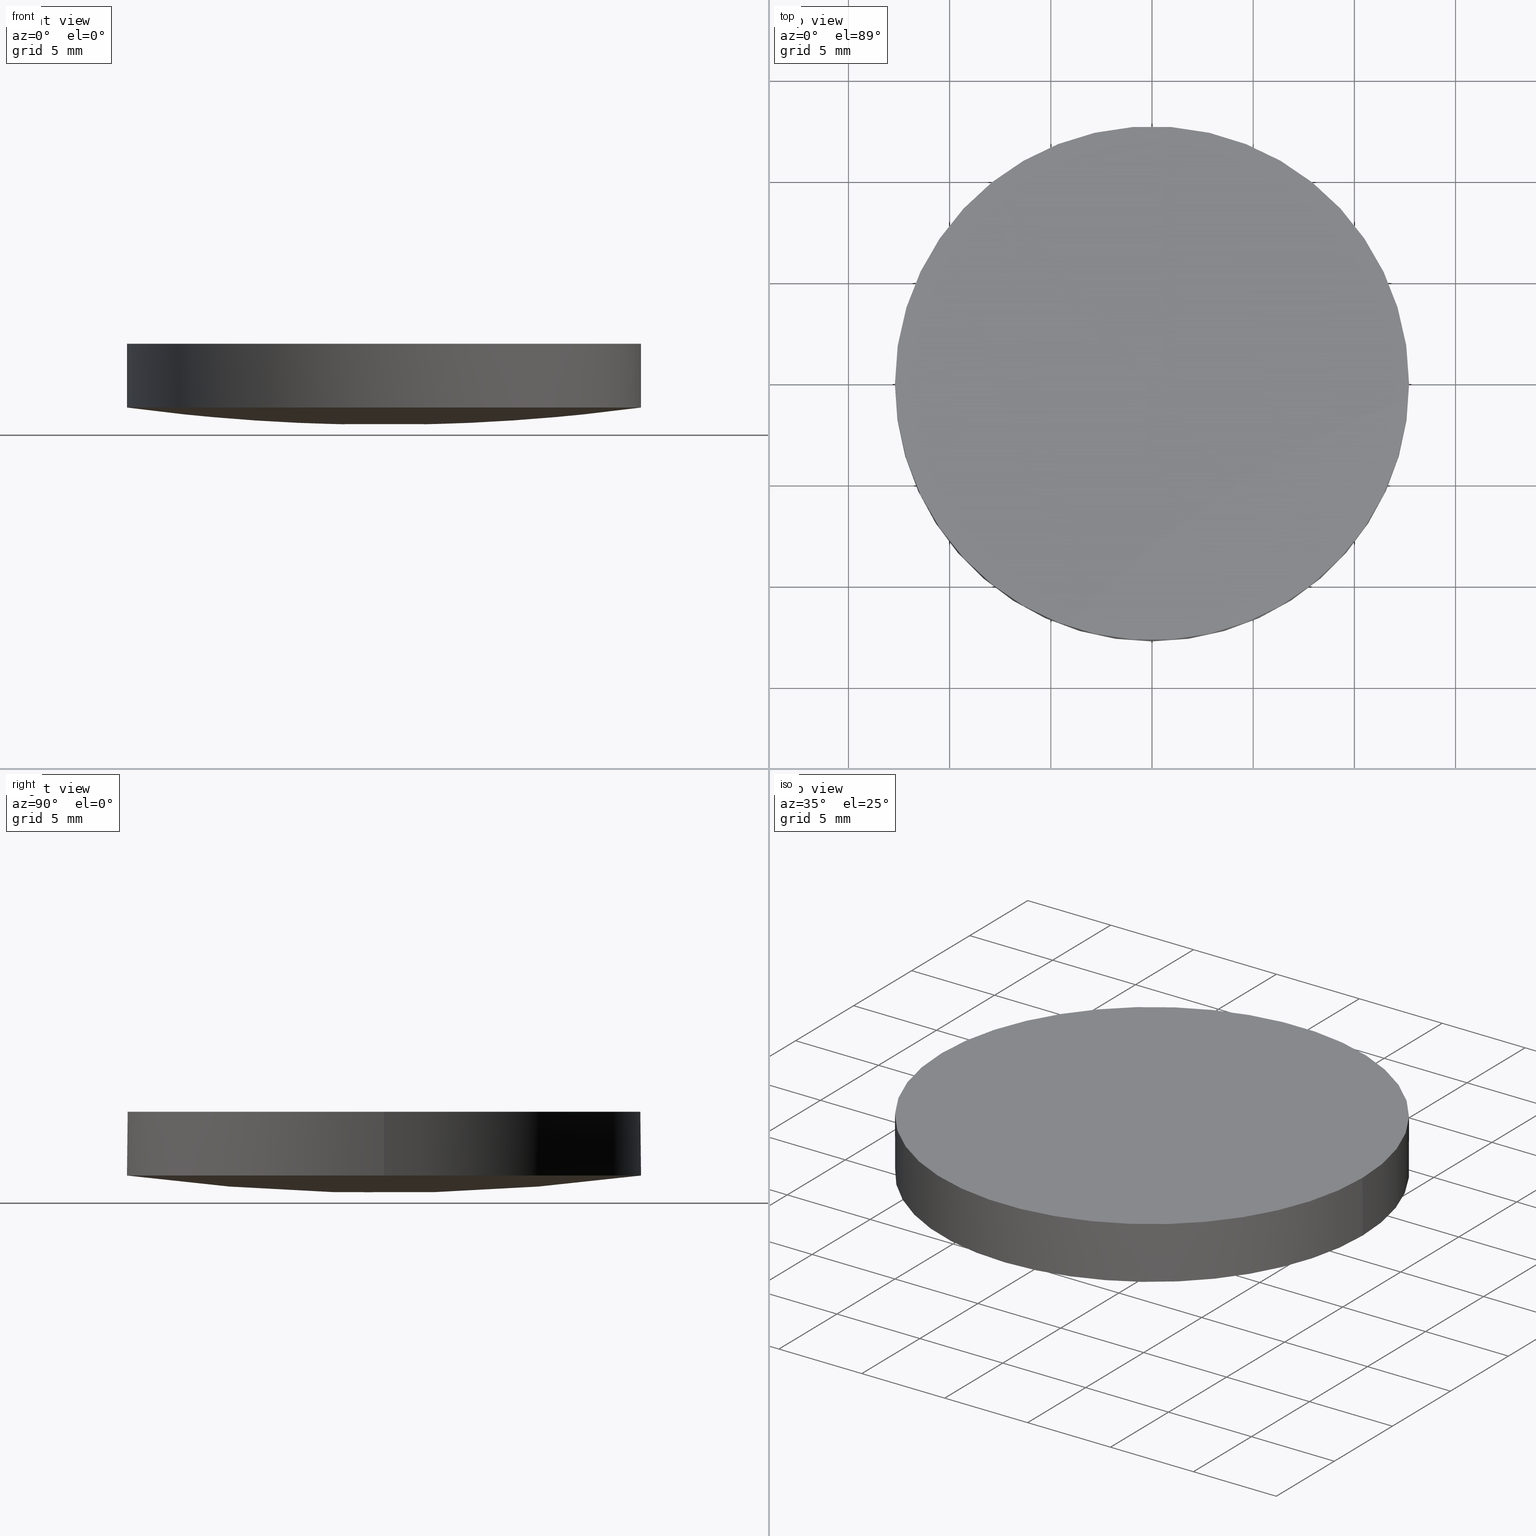
[diagram: canonical four-view strip — front | top / right | iso, engineering-drawing reading convention]
A machine part, canonical four-view strip (front | top / right | iso — engineering-drawing reading convention). The complete STEP part file that produces these views, byte-faithful:
ISO-10303-21;
HEADER;
FILE_DESCRIPTION (( 'STEP AP203' ),
    '1' );
FILE_NAME ('110-1219E UVFS pl-cx 25.4 F200.STEP',
    '2018-12-13T15:00:53',
    ( '' ),
    ( '' ),
    'SwSTEP 2.0',
    'SolidWorks 2017',
    '' );
FILE_SCHEMA (( 'CONFIG_CONTROL_DESIGN' ));
ENDSEC;

DATA;
#1 = CARTESIAN_POINT ( 'NONE',  ( -12.65882076481595500, 12.85147319862263000, 1.724503833646209700 ) ) ;
#2 = DIRECTION ( 'NONE',  ( 0.0000000000000000000, 0.0000000000000000000, 1.000000000000000000 ) ) ;
#3 = AXIS2_PLACEMENT_3D ( 'NONE', #22, #218, #43 ) ;
#4 = DATE_AND_TIME ( #67, #159 ) ;
#5 = DIRECTION ( 'NONE',  ( -0.0000000000000000000, -0.0000000000000000000, -1.000000000000000000 ) ) ;
#6 = LINE ( 'NONE', #81, #196 ) ;
#7 = CARTESIAN_POINT ( 'NONE',  ( 4.287812090952600700, 4.310121068828110900, -0.2922278843999989200 ) ) ;
#8 = EDGE_CURVE ( 'NONE', #181, #89, #136, .T. ) ;
#9 = ORIENTED_EDGE ( 'NONE', *, *, #113, .T. ) ;
#10 = AXIS2_PLACEMENT_3D ( 'NONE', #104, #140, #204 ) ;
#11 =( NAMED_UNIT ( * ) SI_UNIT ( $, .STERADIAN. ) SOLID_ANGLE_UNIT ( ) );
#12 = ADVANCED_FACE ( 'NONE', ( #226 ), #111, .T. ) ;
#13 = SECURITY_CLASSIFICATION_LEVEL ( 'unclassified' ) ;
#14 = PERSON_AND_ORGANIZATION_ROLE ( 'design_owner' ) ;
#15 = DATE_AND_TIME ( #16, #71 ) ;
#16 = CALENDAR_DATE ( 2018, 13, 12 ) ;
#17 = EDGE_LOOP ( 'NONE', ( #76, #148, #229, #192, #44 ) ) ;
#18 = PRODUCT_DEFINITION_FORMATION_WITH_SPECIFIED_SOURCE ( 'ANY', '', #129, .NOT_KNOWN. ) ;
#19 = PERSON_AND_ORGANIZATION ( #197, #118 ) ;
#20 = ORIENTED_EDGE ( 'NONE', *, *, #231, .T. ) ;
#21 = AXIS2_PLACEMENT_3D ( 'NONE', #199, #182, #203 ) ;
#22 = CARTESIAN_POINT ( 'NONE',  ( 4.996003610813200500E-016, 2.442490654175340100E-015, 0.8508239756196249700 ) ) ;
#23 = PRODUCT_DEFINITION ( 'UNKNOWN', '', #18, #65 ) ;
#24 = CARTESIAN_POINT ( 'NONE',  ( 8.461554903374523200, -12.85147319862264400, 1.156154320394219100 ) ) ;
#25 = APPROVAL_DATE_TIME ( #79, #78 ) ;
#26 = CARTESIAN_POINT ( 'NONE',  ( 12.65882076481594800, 12.85147319862263000, 1.724503833646207300 ) ) ;
#27 = DIRECTION ( 'NONE',  ( 1.000000000000000000, 0.0000000000000000000, -0.0000000000000000000 ) ) ;
#28 = MANIFOLD_SOLID_BREP ( 'Imported1', #94 ) ;
#29 =( GEOMETRIC_REPRESENTATION_CONTEXT ( 3 ) GLOBAL_UNCERTAINTY_ASSIGNED_CONTEXT ( ( #93 ) ) GLOBAL_UNIT_ASSIGNED_CONTEXT ( ( #51, #208, #11 ) ) REPRESENTATION_CONTEXT ( 'NONE', 'WORKASPACE' ) );
#30 = SHAPE_DEFINITION_REPRESENTATION ( #96, #83 ) ;
#31 = DATE_TIME_ROLE ( 'classification_date' ) ;
#32 = PERSON_AND_ORGANIZATION_ROLE ( 'creator' ) ;
#33 = CIRCLE ( 'NONE', #214, 12.69999999999999900 ) ;
#34 = MECHANICAL_CONTEXT ( 'NONE', #74, 'mechanical' ) ;
#35 = AXIS2_PLACEMENT_3D ( 'NONE', #166, #60, #80 ) ;
#36 = COORDINATED_UNIVERSAL_TIME_OFFSET ( 2, 0, .AHEAD. ) ;
#37 = CC_DESIGN_APPROVAL ( #92, ( #23 ) ) ;
#38 = CYLINDRICAL_SURFACE ( 'NONE', #10, 12.69999999999999900 ) ;
#39 = PERSON_AND_ORGANIZATION ( #197, #118 ) ;
#40 = EDGE_CURVE ( 'NONE', #232, #62, #219, .T. ) ;
#41 = EDGE_LOOP ( 'NONE', ( #202, #49 ) ) ;
#42 = CARTESIAN_POINT ( 'NONE',  ( 1.387778780781445700E-014, 12.85147319862263000, 0.8713348799916284000 ) ) ;
#43 = DIRECTION ( 'NONE',  ( 1.000000000000000000, 0.0000000000000000000, 0.0000000000000000000 ) ) ;
#44 = ORIENTED_EDGE ( 'NONE', *, *, #161, .T. ) ;
#45 = CARTESIAN_POINT ( 'NONE',  ( -12.81495327383873900, 4.310121068828110000, 0.5714639616968809600 ) ) ;
#46 = CARTESIAN_POINT ( 'NONE',  ( 0.0000000000000000000, 0.0000000000000000000, 0.0000000000000000000 ) ) ;
#47 = CARTESIAN_POINT ( 'NONE',  ( 12.81495327383873200, -4.310121068828122400, 0.5714639616968760800 ) ) ;
#48 = APPROVAL_DATE_TIME ( #4, #92 ) ;
#49 = ORIENTED_EDGE ( 'NONE', *, *, #40, .F. ) ;
#50 = PRODUCT_RELATED_PRODUCT_CATEGORY ( 'detail', '', ( #129 ) ) ;
#51 =( LENGTH_UNIT ( ) NAMED_UNIT ( * ) SI_UNIT ( .MILLI., .METRE. ) );
#52 = ORIENTED_EDGE ( 'NONE', *, *, #110, .T. ) ;
#53 = SECURITY_CLASSIFICATION ( '', '', #13 ) ;
#54 = APPROVAL_ROLE ( '' ) ;
#55 = CALENDAR_DATE ( 2018, 13, 12 ) ;
#56 = CIRCLE ( 'NONE', #99, 12.69999999999999900 ) ;
#57 = ADVANCED_FACE ( 'NONE', ( #223 ), #131, .T. ) ;
#58 = EDGE_LOOP ( 'NONE', ( #112, #91, #52 ) ) ;
#59 = CALENDAR_DATE ( 2018, 13, 12 ) ;
#60 = DIRECTION ( 'NONE',  ( 0.0000000000000000000, 0.0000000000000000000, 1.000000000000000000 ) ) ;
#61 = CARTESIAN_POINT ( 'NONE',  ( 1.387778780781445700E-014, -4.310121068828123300, -0.2922278843999969700 ) ) ;
#62 = VERTEX_POINT ( 'NONE', #95 ) ;
#63 = AXIS2_PLACEMENT_3D ( 'NONE', #84, #5, #101 ) ;
#64 = DIRECTION ( 'NONE',  ( -0.0000000000000000000, -0.0000000000000000000, -1.000000000000000000 ) ) ;
#65 = DESIGN_CONTEXT ( 'detailed design', #88, 'design' ) ;
#66 = CARTESIAN_POINT ( 'NONE',  ( 8.565918794912500200, -4.310121068828121500, -0.003895512210574697700 ) ) ;
#67 = CALENDAR_DATE ( 2018, 13, 12 ) ;
#68 = CARTESIAN_POINT ( 'NONE',  ( 4.996003610813200500E-016, 2.442490654175340100E-015, 4.000000000000000000 ) ) ;
#69 = CC_DESIGN_PERSON_AND_ORGANIZATION_ASSIGNMENT ( #180, #14, ( #129 ) ) ;
#70 = PLANE ( 'NONE',  #177 ) ;
#71 = LOCAL_TIME ( 17, 0, 53.00000000000000000, #36 ) ;
#72 = ORIENTED_EDGE ( 'NONE', *, *, #110, .F. ) ;
#73 = APPLICATION_PROTOCOL_DEFINITION ( 'international standard', 'config_control_design', 1994, #74 ) ;
#74 = APPLICATION_CONTEXT ( 'configuration controlled 3d designs of mechanical parts and assemblies' ) ;
#75 = PERSON_AND_ORGANIZATION ( #197, #118 ) ;
#76 = ORIENTED_EDGE ( 'NONE', *, *, #113, .F. ) ;
#77 = ADVANCED_FACE ( 'NONE', ( #178 ), #38, .T. ) ;
#78 = APPROVAL ( #225, 'UNSPECIFIED' ) ;
#79 = DATE_AND_TIME ( #59, #156 ) ;
#80 = DIRECTION ( 'NONE',  ( 1.000000000000000000, 0.0000000000000000000, 0.0000000000000000000 ) ) ;
#81 = CARTESIAN_POINT ( 'NONE',  ( -12.69999999999999900, 3.997792089092478900E-015, 0.8508239756196249700 ) ) ;
#82 = LOCAL_TIME ( 17, 0, 53.00000000000000000, #201 ) ;
#83 = ADVANCED_BREP_SHAPE_REPRESENTATION ( '110-1219E UVFS pl-cx 25.4 F200', ( #28, #200 ), #29 ) ;
#84 = CARTESIAN_POINT ( 'NONE',  ( 4.996003610813200500E-016, 2.442490654175340100E-015, 0.8508239756196249700 ) ) ;
#85 = CARTESIAN_POINT ( 'NONE',  ( -12.69999999999999900, 3.997792089092478900E-015, 4.000000000000000000 ) ) ;
#86 = CIRCLE ( 'NONE', #132, 12.69999999999999900 ) ;
#87 = CARTESIAN_POINT ( 'NONE',  ( 4.996003610813200500E-016, 2.442490654175340100E-015, 0.8508239756196249700 ) ) ;
#88 = APPLICATION_CONTEXT ( 'configuration controlled 3d designs of mechanical parts and assemblies' ) ;
#89 = VERTEX_POINT ( 'NONE', #102 ) ;
#90 = DATE_AND_TIME ( #107, #198 ) ;
#91 = ORIENTED_EDGE ( 'NONE', *, *, #146, .T. ) ;
#92 = APPROVAL ( #195, 'UNSPECIFIED' ) ;
#93 = UNCERTAINTY_MEASURE_WITH_UNIT (LENGTH_MEASURE( 1.000000000000000100E-005 ), #51, 'distance_accuracy_value', 'NONE');
#94 = CLOSED_SHELL ( 'NONE', ( #149, #12, #57, #77, #147 ) ) ;
#95 = CARTESIAN_POINT ( 'NONE',  ( 12.69999999999999900, 2.442490654175340100E-015, 4.000000000000000000 ) ) ;
#96 = PRODUCT_DEFINITION_SHAPE ( 'NONE', 'NONE',  #23 ) ;
#97 = CARTESIAN_POINT ( 'NONE',  ( -8.461554903374510800, 12.85147319862263200, 1.156154320394218200 ) ) ;
#98 = CARTESIAN_POINT ( 'NONE',  ( -8.461554903374510800, -12.85147319862264400, 1.156154320394218200 ) ) ;
#99 = AXIS2_PLACEMENT_3D ( 'NONE', #87, #64, #138 ) ;
#100 = DIRECTION ( 'NONE',  ( -0.0000000000000000000, -0.0000000000000000000, -1.000000000000000000 ) ) ;
#101 = DIRECTION ( 'NONE',  ( 1.000000000000000000, 0.0000000000000000000, 0.0000000000000000000 ) ) ;
#102 = CARTESIAN_POINT ( 'NONE',  ( 12.69999999999999900, 2.442490654175340100E-015, 0.8508239756196249700 ) ) ;
#103 = CIRCLE ( 'NONE', #179, 95.20999999999999400 ) ;
#104 = CARTESIAN_POINT ( 'NONE',  ( 4.996003610813200500E-016, 2.442490654175340100E-015, 0.8508239756196249700 ) ) ;
#105 = CC_DESIGN_PERSON_AND_ORGANIZATION_ASSIGNMENT ( #212, #210, ( #53 ) ) ;
#106 = CARTESIAN_POINT ( 'NONE',  ( 4.235571021814615200, 12.85147319862263200, 0.8713348799916240700 ) ) ;
#107 = CALENDAR_DATE ( 2018, 13, 12 ) ;
#108 = VERTEX_POINT ( 'NONE', #119 ) ;
#109 = APPROVAL_DATE_TIME ( #90, #165 ) ;
#110 = EDGE_CURVE ( 'NONE', #108, #181, #130, .T. ) ;
#111 = CYLINDRICAL_SURFACE ( 'NONE', #35, 12.69999999999999900 ) ;
#112 = ORIENTED_EDGE ( 'NONE', *, *, #231, .F. ) ;
#113 = EDGE_CURVE ( 'NONE', #108, #232, #6, .T. ) ;
#114 = APPROVAL_PERSON_ORGANIZATION ( #75, #92, #162 ) ;
#115 = ORIENTED_EDGE ( 'NONE', *, *, #169, .T. ) ;
#116 = CARTESIAN_POINT ( 'NONE',  ( -4.235571021814584100, 12.85147319862263200, 0.8713348799916281800 ) ) ;
#117 = CARTESIAN_POINT ( 'NONE',  ( -4.287812090952568800, 4.310121068828110000, -0.2922278843999948600 ) ) ;
#118 = ORGANIZATION ( 'UNSPECIFIED', 'UNSPECIFIED', '' ) ;
#119 = CARTESIAN_POINT ( 'NONE',  ( -12.69999999999999900, 3.997792089092478900E-015, 0.8508239756196249700 ) ) ;
#120 = CARTESIAN_POINT ( 'NONE',  ( 0.0000000000000000000, 26.11199999999999800, 4.000000000000000000 ) ) ;
#121 = CARTESIAN_POINT ( 'NONE',  ( 3.656417551492290700E-014, -4.310121068828122400, -0.2922278844000026400 ) ) ;
#122 = CARTESIAN_POINT ( 'NONE',  ( 8.461554903374523200, 12.85147319862263200, 1.156154320394219100 ) ) ;
#123 = APPROVAL_STATUS ( 'not_yet_approved' ) ;
#124 = DATE_TIME_ROLE ( 'creation_date' ) ;
#125 = DIRECTION ( 'NONE',  ( 0.0000000000000000000, -1.000000000000000000, 2.915195422290611700E-016 ) ) ;
#126 = PERSON_AND_ORGANIZATION ( #197, #118 ) ;
#127 = CC_DESIGN_DATE_AND_TIME_ASSIGNMENT ( #213, #31, ( #53 ) ) ;
#128 = ORIENTED_EDGE ( 'NONE', *, *, #8, .F. ) ;
#129 = PRODUCT ( '110-1219E UVFS pl-cx 25.4 F200', '110-1219E UVFS pl-cx 25.4 F200', '', ( #34 ) ) ;
#130 = CIRCLE ( 'NONE', #63, 12.69999999999999900 ) ;
#131 =( BOUNDED_SURFACE ( )  B_SPLINE_SURFACE ( 3, 3, ( 
 ( #168, #98, #215, #233 ),
 ( #135, #167, #234, #61 ),
 ( #45, #152, #117, #183 ),
 ( #1, #97, #116, #42 ) ),
 .UNSPECIFIED., .F., .F., .F. ) 
 B_SPLINE_SURFACE_WITH_KNOTS ( ( 4, 4 ),
 ( 4, 4 ),
 ( 0.0000000000000000000, 1.000000000000000000 ),
 ( 0.0000000000000000000, 1.000000000000000000 ),
 .UNSPECIFIED. ) 
 GEOMETRIC_REPRESENTATION_ITEM ( )  RATIONAL_B_SPLINE_SURFACE ( (
 ( 1.000000000000000000, 0.9984910117659392400, 0.9984910117659392400, 1.000000000000000000),
 ( 0.9938988560025793200, 0.9923990743230249900, 0.9923990743230249900, 0.9938988560025793200),
 ( 0.9938988560025793200, 0.9923990743230249900, 0.9923990743230249900, 0.9938988560025793200),
 ( 1.000000000000000000, 0.9984910117659392400, 0.9984910117659392400, 1.000000000000000000) ) ) 
 REPRESENTATION_ITEM ( '' )  SURFACE ( )  );
#132 = AXIS2_PLACEMENT_3D ( 'NONE', #187, #189, #205 ) ;
#133 = APPROVAL_PERSON_ORGANIZATION ( #126, #78, #144 ) ;
#134 = ORIENTED_EDGE ( 'NONE', *, *, #40, .T. ) ;
#135 = CARTESIAN_POINT ( 'NONE',  ( -12.81495327383873900, -4.310121068828122400, 0.5714639616968787400 ) ) ;
#136 = CIRCLE ( 'NONE', #3, 12.69999999999999900 ) ;
#137 = EDGE_CURVE ( 'NONE', #89, #62, #217, .T. ) ;
#138 = DIRECTION ( 'NONE',  ( 1.000000000000000000, 0.0000000000000000000, 0.0000000000000000000 ) ) ;
#139 = CARTESIAN_POINT ( 'NONE',  ( 3.656417551492290700E-014, 4.310121068828110000, -0.2922278844000001900 ) ) ;
#140 = DIRECTION ( 'NONE',  ( 0.0000000000000000000, 0.0000000000000000000, 1.000000000000000000 ) ) ;
#141 = APPROVAL_PERSON_ORGANIZATION ( #19, #165, #54 ) ;
#142 = CC_DESIGN_APPROVAL ( #78, ( #53 ) ) ;
#143 = ORIENTED_EDGE ( 'NONE', *, *, #137, .F. ) ;
#144 = APPROVAL_ROLE ( '' ) ;
#145 = PERSON_AND_ORGANIZATION_ROLE ( 'design_supplier' ) ;
#146 = EDGE_CURVE ( 'NONE', #150, #108, #56, .T. ) ;
#147 = ADVANCED_FACE ( 'NONE', ( #176 ), #70, .T. ) ;
#148 = ORIENTED_EDGE ( 'NONE', *, *, #146, .F. ) ;
#149 = ADVANCED_FACE ( 'NONE', ( #173 ), #230, .T. ) ;
#150 = VERTEX_POINT ( 'NONE', #171 ) ;
#151 = VECTOR ( 'NONE', #190, 1000.000000000000000 ) ;
#152 = CARTESIAN_POINT ( 'NONE',  ( -8.565918794912489500, 4.310121068828110900, -0.003895512210573180300 ) ) ;
#153 = PERSON_AND_ORGANIZATION ( #197, #118 ) ;
#154 = DIRECTION ( 'NONE',  ( 0.0000000000000000000, 0.0000000000000000000, 1.000000000000000000 ) ) ;
#155 = DIRECTION ( 'NONE',  ( 1.000000000000000000, 0.0000000000000000000, 0.0000000000000000000 ) ) ;
#156 = LOCAL_TIME ( 17, 0, 53.00000000000000000, #207 ) ;
#157 = CARTESIAN_POINT ( 'NONE',  ( 4.235571021814615200, -12.85147319862264400, 0.8713348799916240700 ) ) ;
#158 = CARTESIAN_POINT ( 'NONE',  ( 3.621158817093093200E-014, 12.69999999999999600, 0.8508239756196261900 ) ) ;
#159 = LOCAL_TIME ( 17, 0, 53.00000000000000000, #164 ) ;
#160 = ORIENTED_EDGE ( 'NONE', *, *, #8, .T. ) ;
#161 = EDGE_CURVE ( 'NONE', #62, #232, #33, .T. ) ;
#162 = APPROVAL_ROLE ( '' ) ;
#163 = PERSON_AND_ORGANIZATION ( #197, #118 ) ;
#164 = COORDINATED_UNIVERSAL_TIME_OFFSET ( 2, 0, .AHEAD. ) ;
#165 = APPROVAL ( #123, 'UNSPECIFIED' ) ;
#166 = CARTESIAN_POINT ( 'NONE',  ( 4.996003610813200500E-016, 2.442490654175340100E-015, 0.8508239756196249700 ) ) ;
#167 = CARTESIAN_POINT ( 'NONE',  ( -8.565918794912489500, -4.310121068828121500, -0.003895512210575673100 ) ) ;
#168 = CARTESIAN_POINT ( 'NONE',  ( -12.65882076481595500, -12.85147319862264000, 1.724503833646209700 ) ) ;
#169 = EDGE_CURVE ( 'NONE', #89, #150, #86, .T. ) ;
#170 = CARTESIAN_POINT ( 'NONE',  ( 3.620526134924563500E-014, -12.85147319862264000, 0.8713348799916226200 ) ) ;
#171 = CARTESIAN_POINT ( 'NONE',  ( 3.621158817093093200E-014, -12.69999999999998900, 0.8508239756196261900 ) ) ;
#172 = CARTESIAN_POINT ( 'NONE',  ( 12.69999999999999900, 2.442490654175340100E-015, 0.8508239756196249700 ) ) ;
#173 = FACE_OUTER_BOUND ( 'NONE', #235, .T. ) ;
#174 = DIRECTION ( 'NONE',  ( 0.0000000000000000000, 0.0000000000000000000, 1.000000000000000000 ) ) ;
#175 = PERSON_AND_ORGANIZATION_ROLE ( 'creator' ) ;
#176 = FACE_OUTER_BOUND ( 'NONE', #41, .T. ) ;
#177 = AXIS2_PLACEMENT_3D ( 'NONE', #120, #154, #27 ) ;
#178 = FACE_OUTER_BOUND ( 'NONE', #17, .T. ) ;
#179 = AXIS2_PLACEMENT_3D ( 'NONE', #228, #224, #125 ) ;
#180 = PERSON_AND_ORGANIZATION ( #197, #118 ) ;
#181 = VERTEX_POINT ( 'NONE', #158 ) ;
#182 = DIRECTION ( 'NONE',  ( -0.0000000000000000000, -0.0000000000000000000, -1.000000000000000000 ) ) ;
#183 = CARTESIAN_POINT ( 'NONE',  ( 1.387778780781445700E-014, 4.310121068828109100, -0.2922278843999945300 ) ) ;
#184 = EDGE_LOOP ( 'NONE', ( #72, #9, #134, #143, #128 ) ) ;
#185 = CARTESIAN_POINT ( 'NONE',  ( 12.81495327383873000, 4.310121068828110000, 0.5714639616968784100 ) ) ;
#186 = CARTESIAN_POINT ( 'NONE',  ( 3.620526134924563500E-014, 12.85147319862263000, 0.8713348799916226200 ) ) ;
#187 = CARTESIAN_POINT ( 'NONE',  ( 4.996003610813200500E-016, 2.442490654175340100E-015, 0.8508239756196249700 ) ) ;
#188 = CC_DESIGN_APPROVAL ( #165, ( #18 ) ) ;
#189 = DIRECTION ( 'NONE',  ( -0.0000000000000000000, -0.0000000000000000000, -1.000000000000000000 ) ) ;
#190 = DIRECTION ( 'NONE',  ( 0.0000000000000000000, 0.0000000000000000000, 1.000000000000000000 ) ) ;
#191 = APPLICATION_PROTOCOL_DEFINITION ( 'international standard', 'config_control_design', 1994, #88 ) ;
#192 = ORIENTED_EDGE ( 'NONE', *, *, #137, .T. ) ;
#193 = DIRECTION ( 'NONE',  ( 1.000000000000000000, 0.0000000000000000000, 0.0000000000000000000 ) ) ;
#194 = CC_DESIGN_DATE_AND_TIME_ASSIGNMENT ( #15, #124, ( #23 ) ) ;
#195 = APPROVAL_STATUS ( 'not_yet_approved' ) ;
#196 = VECTOR ( 'NONE', #2, 1000.000000000000000 ) ;
#197 = PERSON ( 'UNSPECIFIED', 'UNSPECIFIED', 'UNSPECIFIED', ('UNSPECIFIED'), ('UNSPECIFIED'), ('UNSPECIFIED') ) ;
#198 = LOCAL_TIME ( 17, 0, 53.00000000000000000, #216 ) ;
#199 = CARTESIAN_POINT ( 'NONE',  ( 4.996003610813200500E-016, 2.442490654175340100E-015, 4.000000000000000000 ) ) ;
#200 = AXIS2_PLACEMENT_3D ( 'NONE', #46, #174, #193 ) ;
#201 = COORDINATED_UNIVERSAL_TIME_OFFSET ( 2, 0, .AHEAD. ) ;
#202 = ORIENTED_EDGE ( 'NONE', *, *, #161, .F. ) ;
#203 = DIRECTION ( 'NONE',  ( 1.000000000000000000, 0.0000000000000000000, 0.0000000000000000000 ) ) ;
#204 = DIRECTION ( 'NONE',  ( 1.000000000000000000, 0.0000000000000000000, 0.0000000000000000000 ) ) ;
#205 = DIRECTION ( 'NONE',  ( 1.000000000000000000, 0.0000000000000000000, 0.0000000000000000000 ) ) ;
#206 = CARTESIAN_POINT ( 'NONE',  ( 4.287812090952600700, -4.310121068828121500, -0.2922278844000013600 ) ) ;
#207 = COORDINATED_UNIVERSAL_TIME_OFFSET ( 2, 0, .AHEAD. ) ;
#208 =( NAMED_UNIT ( * ) PLANE_ANGLE_UNIT ( ) SI_UNIT ( $, .RADIAN. ) );
#209 = CC_DESIGN_SECURITY_CLASSIFICATION ( #53, ( #18 ) ) ;
#210 = PERSON_AND_ORGANIZATION_ROLE ( 'classification_officer' ) ;
#211 = CC_DESIGN_PERSON_AND_ORGANIZATION_ASSIGNMENT ( #163, #32, ( #18 ) ) ;
#212 = PERSON_AND_ORGANIZATION ( #197, #118 ) ;
#213 = DATE_AND_TIME ( #55, #82 ) ;
#214 = AXIS2_PLACEMENT_3D ( 'NONE', #68, #100, #155 ) ;
#215 = CARTESIAN_POINT ( 'NONE',  ( -4.235571021814584100, -12.85147319862264400, 0.8713348799916281800 ) ) ;
#216 = COORDINATED_UNIVERSAL_TIME_OFFSET ( 2, 0, .AHEAD. ) ;
#217 = LINE ( 'NONE', #172, #151 ) ;
#218 = DIRECTION ( 'NONE',  ( -0.0000000000000000000, -0.0000000000000000000, -1.000000000000000000 ) ) ;
#219 = CIRCLE ( 'NONE', #21, 12.69999999999999900 ) ;
#220 = CARTESIAN_POINT ( 'NONE',  ( 12.65882076481594800, -12.85147319862264000, 1.724503833646207300 ) ) ;
#221 = CARTESIAN_POINT ( 'NONE',  ( 8.565918794912500200, 4.310121068828110900, -0.003895512210572312000 ) ) ;
#222 = CC_DESIGN_PERSON_AND_ORGANIZATION_ASSIGNMENT ( #39, #145, ( #18 ) ) ;
#223 = FACE_OUTER_BOUND ( 'NONE', #58, .T. ) ;
#224 = DIRECTION ( 'NONE',  ( 1.000000000000000000, 9.414397848674539600E-032, 3.084613711104210100E-016 ) ) ;
#225 = APPROVAL_STATUS ( 'not_yet_approved' ) ;
#226 = FACE_OUTER_BOUND ( 'NONE', #184, .T. ) ;
#227 = CC_DESIGN_PERSON_AND_ORGANIZATION_ASSIGNMENT ( #153, #175, ( #23 ) ) ;
#228 = CARTESIAN_POINT ( 'NONE',  ( 7.105427357601000300E-015, 7.105427357601000300E-015, 95.20999999999999400 ) ) ;
#229 = ORIENTED_EDGE ( 'NONE', *, *, #169, .F. ) ;
#230 =( BOUNDED_SURFACE ( )  B_SPLINE_SURFACE ( 3, 3, ( 
 ( #170, #157, #24, #220 ),
 ( #121, #206, #66, #47 ),
 ( #139, #7, #221, #185 ),
 ( #186, #106, #122, #26 ) ),
 .UNSPECIFIED., .F., .F., .F. ) 
 B_SPLINE_SURFACE_WITH_KNOTS ( ( 4, 4 ),
 ( 4, 4 ),
 ( 0.0000000000000000000, 1.000000000000000000 ),
 ( 0.0000000000000000000, 1.000000000000000000 ),
 .UNSPECIFIED. ) 
 GEOMETRIC_REPRESENTATION_ITEM ( )  RATIONAL_B_SPLINE_SURFACE ( (
 ( 1.000000000000000000, 0.9984910117659392400, 0.9984910117659392400, 1.000000000000000000),
 ( 0.9938988560025793200, 0.9923990743230249900, 0.9923990743230249900, 0.9938988560025793200),
 ( 0.9938988560025793200, 0.9923990743230249900, 0.9923990743230249900, 0.9938988560025793200),
 ( 1.000000000000000000, 0.9984910117659392400, 0.9984910117659392400, 1.000000000000000000) ) ) 
 REPRESENTATION_ITEM ( '' )  SURFACE ( )  );
#231 = EDGE_CURVE ( 'NONE', #150, #181, #103, .T. ) ;
#232 = VERTEX_POINT ( 'NONE', #85 ) ;
#233 = CARTESIAN_POINT ( 'NONE',  ( 1.387778780781445700E-014, -12.85147319862264000, 0.8713348799916284000 ) ) ;
#234 = CARTESIAN_POINT ( 'NONE',  ( -4.287812090952569700, -4.310121068828122400, -0.2922278843999973600 ) ) ;
#235 = EDGE_LOOP ( 'NONE', ( #115, #20, #160 ) ) ;
ENDSEC;
END-ISO-10303-21;
